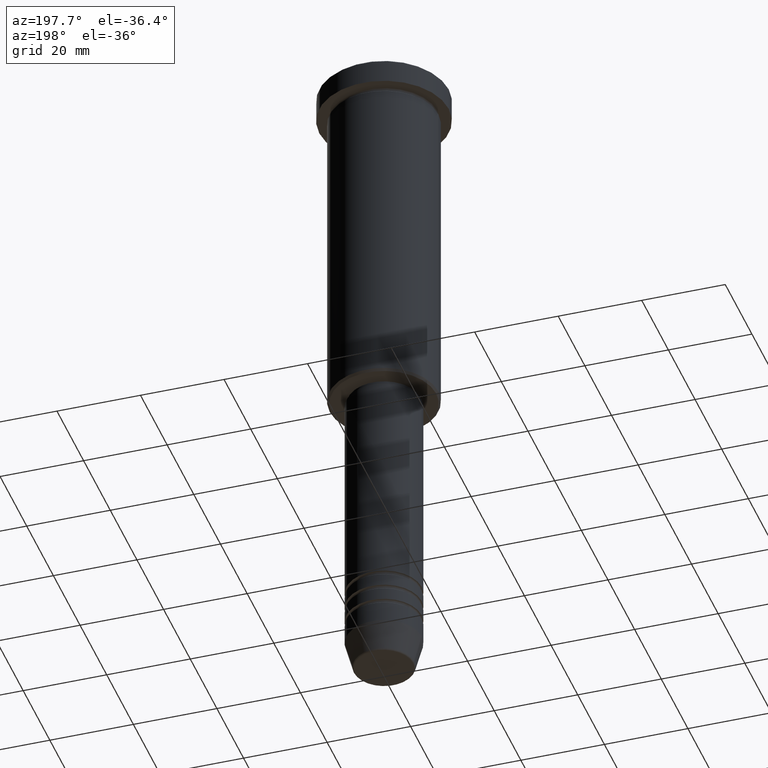
[diagram: clean part render]
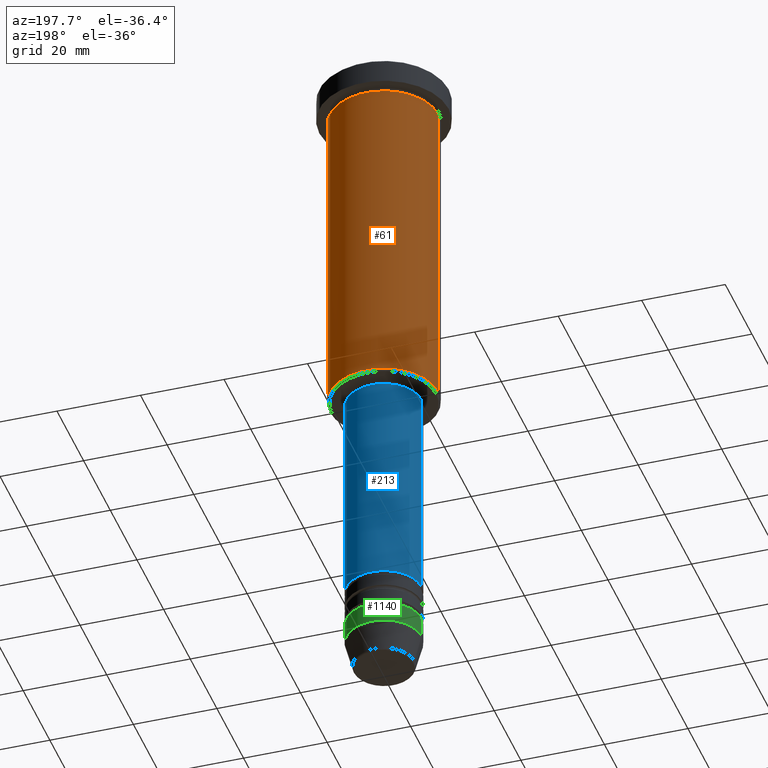
[diagram: same view with three faces highlighted in distinct colors, each labeled with its STEP entity id]
A machine part, auxiliary view with three faces highlighted in distinct colors.
Their STEP definitions:

[orange] entity #61 — the highlighted cylindrical surface (partial cylindrical patch) has radius 13 mm, axis along (-0, -0, 1).
#1 = VERTEX_POINT ( 'NONE', #56 ) ;
#56 = CARTESIAN_POINT ( 'NONE',  ( -13.00000000000000178, 1.592040838891559293E-15, -6.999999999999995559 ) ) ;
#61 = ADVANCED_FACE ( 'NONE', ( #1095 ), #344, .T. ) ;
#63 = ORIENTED_EDGE ( 'NONE', *, *, #975, .F. ) ;
#66 = DIRECTION ( 'NONE',  ( 1.000000000000000000, 0.000000000000000000, 0.000000000000000000 ) ) ;
#81 = LINE ( 'NONE', #617, #334 ) ;
#204 = CARTESIAN_POINT ( 'NONE',  ( 13.00000000000000178, 0.000000000000000000, -6.999999999999995559 ) ) ;
#259 = VERTEX_POINT ( 'NONE', #204 ) ;
#266 = CARTESIAN_POINT ( 'NONE',  ( 0.000000000000000000, 0.000000000000000000, -85.49999999999992895 ) ) ;
#267 = ORIENTED_EDGE ( 'NONE', *, *, #772, .T. ) ;
#294 = CARTESIAN_POINT ( 'NONE',  ( -13.00000000000000178, 1.592040838891559293E-15, 0.000000000000000000 ) ) ;
#334 = VECTOR ( 'NONE', #701, 1000.000000000000000 ) ;
#344 = CYLINDRICAL_SURFACE ( 'NONE', #842, 13.00000000000000178 ) ;
#374 = CIRCLE ( 'NONE', #609, 13.00000000000000178 ) ;
#406 = ORIENTED_EDGE ( 'NONE', *, *, #1159, .T. ) ;
#448 = VERTEX_POINT ( 'NONE', #1064 ) ;
#476 = DIRECTION ( 'NONE',  ( -0.000000000000000000, -0.000000000000000000, 1.000000000000000000 ) ) ;
#531 = CARTESIAN_POINT ( 'NONE',  ( -13.00000000000000178, 1.592040838891559293E-15, -85.49999999999992895 ) ) ;
#552 = CIRCLE ( 'NONE', #724, 13.00000000000000178 ) ;
#576 = VERTEX_POINT ( 'NONE', #531 ) ;
#585 = EDGE_CURVE ( 'NONE', #259, #1, #552, .T. ) ;
#609 = AXIS2_PLACEMENT_3D ( 'NONE', #266, #646, #1023 ) ;
#617 = CARTESIAN_POINT ( 'NONE',  ( 13.00000000000000178, 0.000000000000000000, 0.000000000000000000 ) ) ;
#646 = DIRECTION ( 'NONE',  ( -0.000000000000000000, -0.000000000000000000, 1.000000000000000000 ) ) ;
#701 = DIRECTION ( 'NONE',  ( -0.000000000000000000, -0.000000000000000000, 1.000000000000000000 ) ) ;
#724 = AXIS2_PLACEMENT_3D ( 'NONE', #1164, #1079, #818 ) ;
#735 = ORIENTED_EDGE ( 'NONE', *, *, #585, .F. ) ;
#772 = EDGE_CURVE ( 'NONE', #576, #1, #1119, .T. ) ;
#816 = EDGE_LOOP ( 'NONE', ( #406, #267, #735, #63 ) ) ;
#818 = DIRECTION ( 'NONE',  ( 1.000000000000000000, 0.000000000000000000, 0.000000000000000000 ) ) ;
#842 = AXIS2_PLACEMENT_3D ( 'NONE', #1076, #1169, #66 ) ;
#970 = VECTOR ( 'NONE', #476, 1000.000000000000000 ) ;
#975 = EDGE_CURVE ( 'NONE', #448, #259, #81, .T. ) ;
#1023 = DIRECTION ( 'NONE',  ( -1.000000000000000000, 0.000000000000000000, 0.000000000000000000 ) ) ;
#1064 = CARTESIAN_POINT ( 'NONE',  ( 13.00000000000000178, 0.000000000000000000, -85.49999999999992895 ) ) ;
#1076 = CARTESIAN_POINT ( 'NONE',  ( 0.000000000000000000, 0.000000000000000000, 0.000000000000000000 ) ) ;
#1079 = DIRECTION ( 'NONE',  ( -0.000000000000000000, -0.000000000000000000, 1.000000000000000000 ) ) ;
#1095 = FACE_OUTER_BOUND ( 'NONE', #816, .T. ) ;
#1119 = LINE ( 'NONE', #294, #970 ) ;
#1159 = EDGE_CURVE ( 'NONE', #448, #576, #374, .T. ) ;
#1164 = CARTESIAN_POINT ( 'NONE',  ( 0.000000000000000000, 0.000000000000000000, -6.999999999999995559 ) ) ;
#1169 = DIRECTION ( 'NONE',  ( -0.000000000000000000, -0.000000000000000000, 1.000000000000000000 ) ) ;

[blue] entity #213 — the highlighted cylindrical surface (partial cylindrical patch) has radius 9 mm, axis along (-0, -0, 1).
#52 = VECTOR ( 'NONE', #198, 1000.000000000000000 ) ;
#54 = DIRECTION ( 'NONE',  ( 1.000000000000000000, 0.000000000000000000, 0.000000000000000000 ) ) ;
#58 = VERTEX_POINT ( 'NONE', #910 ) ;
#90 = VECTOR ( 'NONE', #628, 1000.000000000000000 ) ;
#105 = CIRCLE ( 'NONE', #702, 8.999999999999998224 ) ;
#198 = DIRECTION ( 'NONE',  ( -0.000000000000000000, -0.000000000000000000, 1.000000000000000000 ) ) ;
#210 = ORIENTED_EDGE ( 'NONE', *, *, #1179, .F. ) ;
#213 = ADVANCED_FACE ( 'NONE', ( #1030 ), #836, .T. ) ;
#238 = CARTESIAN_POINT ( 'NONE',  ( -8.999999999999998224, 1.102182119232617714E-15, -86.99999999999997158 ) ) ;
#249 = LINE ( 'NONE', #902, #90 ) ;
#252 = CARTESIAN_POINT ( 'NONE',  ( 0.000000000000000000, 0.000000000000000000, -86.99999999999997158 ) ) ;
#302 = DIRECTION ( 'NONE',  ( -0.000000000000000000, -0.000000000000000000, 1.000000000000000000 ) ) ;
#320 = DIRECTION ( 'NONE',  ( -0.000000000000000000, -0.000000000000000000, 1.000000000000000000 ) ) ;
#338 = DIRECTION ( 'NONE',  ( -0.000000000000000000, -0.000000000000000000, 1.000000000000000000 ) ) ;
#369 = DIRECTION ( 'NONE',  ( 1.000000000000000000, 0.000000000000000000, 0.000000000000000000 ) ) ;
#411 = VERTEX_POINT ( 'NONE', #506 ) ;
#425 = ORIENTED_EDGE ( 'NONE', *, *, #866, .T. ) ;
#483 = CARTESIAN_POINT ( 'NONE',  ( 8.999999999999998224, 0.000000000000000000, -86.99999999999997158 ) ) ;
#504 = CARTESIAN_POINT ( 'NONE',  ( 0.000000000000000000, 0.000000000000000000, -139.9999999999998579 ) ) ;
#506 = CARTESIAN_POINT ( 'NONE',  ( -9.000000000000001776, 1.102182119232617911E-15, -139.9999999999998579 ) ) ;
#520 = ORIENTED_EDGE ( 'NONE', *, *, #594, .F. ) ;
#594 = EDGE_CURVE ( 'NONE', #723, #997, #105, .T. ) ;
#626 = CIRCLE ( 'NONE', #1086, 9.000000000000001776 ) ;
#628 = DIRECTION ( 'NONE',  ( -0.000000000000000000, -0.000000000000000000, 1.000000000000000000 ) ) ;
#702 = AXIS2_PLACEMENT_3D ( 'NONE', #252, #338, #1176 ) ;
#723 = VERTEX_POINT ( 'NONE', #483 ) ;
#731 = EDGE_LOOP ( 'NONE', ( #425, #1182, #520, #210 ) ) ;
#836 = CYLINDRICAL_SURFACE ( 'NONE', #855, 9.000000000000000000 ) ;
#846 = LINE ( 'NONE', #919, #52 ) ;
#855 = AXIS2_PLACEMENT_3D ( 'NONE', #1035, #302, #369 ) ;
#866 = EDGE_CURVE ( 'NONE', #58, #411, #626, .T. ) ;
#902 = CARTESIAN_POINT ( 'NONE',  ( -9.000000000000000000, 1.102182119232617714E-15, 0.000000000000000000 ) ) ;
#910 = CARTESIAN_POINT ( 'NONE',  ( 9.000000000000001776, 0.000000000000000000, -139.9999999999998579 ) ) ;
#919 = CARTESIAN_POINT ( 'NONE',  ( 9.000000000000000000, 0.000000000000000000, 0.000000000000000000 ) ) ;
#997 = VERTEX_POINT ( 'NONE', #238 ) ;
#1030 = FACE_OUTER_BOUND ( 'NONE', #731, .T. ) ;
#1035 = CARTESIAN_POINT ( 'NONE',  ( 0.000000000000000000, 0.000000000000000000, 0.000000000000000000 ) ) ;
#1063 = EDGE_CURVE ( 'NONE', #411, #997, #249, .T. ) ;
#1086 = AXIS2_PLACEMENT_3D ( 'NONE', #504, #320, #54 ) ;
#1176 = DIRECTION ( 'NONE',  ( 1.000000000000000000, 0.000000000000000000, 0.000000000000000000 ) ) ;
#1179 = EDGE_CURVE ( 'NONE', #58, #723, #846, .T. ) ;
#1182 = ORIENTED_EDGE ( 'NONE', *, *, #1063, .T. ) ;

[green] entity #1140 — the highlighted cylindrical surface (partial cylindrical patch) has radius 9 mm, axis along (-0, -0, 1).
#132 = DIRECTION ( 'NONE',  ( -0.000000000000000000, -0.000000000000000000, 1.000000000000000000 ) ) ;
#147 = ORIENTED_EDGE ( 'NONE', *, *, #1072, .T. ) ;
#164 = AXIS2_PLACEMENT_3D ( 'NONE', #925, #912, #272 ) ;
#170 = LINE ( 'NONE', #730, #454 ) ;
#177 = VERTEX_POINT ( 'NONE', #737 ) ;
#237 = CIRCLE ( 'NONE', #898, 9.000000000000000000 ) ;
#272 = DIRECTION ( 'NONE',  ( 1.000000000000000000, 0.000000000000000000, 0.000000000000000000 ) ) ;
#361 = ORIENTED_EDGE ( 'NONE', *, *, #1040, .T. ) ;
#424 = DIRECTION ( 'NONE',  ( 1.000000000000000000, 0.000000000000000000, 0.000000000000000000 ) ) ;
#454 = VECTOR ( 'NONE', #908, 1000.000000000000000 ) ;
#458 = CARTESIAN_POINT ( 'NONE',  ( 0.000000000000000000, 0.000000000000000000, -148.9999999999999716 ) ) ;
#463 = DIRECTION ( 'NONE',  ( 1.000000000000000000, 0.000000000000000000, 0.000000000000000000 ) ) ;
#511 = VECTOR ( 'NONE', #132, 1000.000000000000000 ) ;
#527 = CARTESIAN_POINT ( 'NONE',  ( 0.000000000000000000, 0.000000000000000000, -153.9999999999999716 ) ) ;
#541 = VERTEX_POINT ( 'NONE', #1003 ) ;
#657 = CARTESIAN_POINT ( 'NONE',  ( 9.000000000000000000, 0.000000000000000000, -148.9999999999999716 ) ) ;
#692 = CARTESIAN_POINT ( 'NONE',  ( 9.000000000000000000, 0.000000000000000000, 0.000000000000000000 ) ) ;
#716 = VERTEX_POINT ( 'NONE', #657 ) ;
#730 = CARTESIAN_POINT ( 'NONE',  ( -9.000000000000000000, 1.102182119232617714E-15, 0.000000000000000000 ) ) ;
#737 = CARTESIAN_POINT ( 'NONE',  ( -9.000000000000000000, 1.102182119232617714E-15, -148.9999999999999716 ) ) ;
#746 = VERTEX_POINT ( 'NONE', #834 ) ;
#756 = CYLINDRICAL_SURFACE ( 'NONE', #164, 9.000000000000000000 ) ;
#771 = LINE ( 'NONE', #692, #511 ) ;
#776 = EDGE_LOOP ( 'NONE', ( #361, #147, #1036, #793 ) ) ;
#793 = ORIENTED_EDGE ( 'NONE', *, *, #888, .F. ) ;
#797 = DIRECTION ( 'NONE',  ( -0.000000000000000000, -0.000000000000000000, 1.000000000000000000 ) ) ;
#822 = FACE_OUTER_BOUND ( 'NONE', #776, .T. ) ;
#834 = CARTESIAN_POINT ( 'NONE',  ( -9.000000000000000000, 1.102182119232617714E-15, -153.9999999999999716 ) ) ;
#877 = AXIS2_PLACEMENT_3D ( 'NONE', #527, #797, #424 ) ;
#888 = EDGE_CURVE ( 'NONE', #541, #716, #771, .T. ) ;
#898 = AXIS2_PLACEMENT_3D ( 'NONE', #458, #929, #463 ) ;
#908 = DIRECTION ( 'NONE',  ( -0.000000000000000000, -0.000000000000000000, 1.000000000000000000 ) ) ;
#912 = DIRECTION ( 'NONE',  ( -0.000000000000000000, -0.000000000000000000, 1.000000000000000000 ) ) ;
#925 = CARTESIAN_POINT ( 'NONE',  ( 0.000000000000000000, 0.000000000000000000, 0.000000000000000000 ) ) ;
#929 = DIRECTION ( 'NONE',  ( -0.000000000000000000, -0.000000000000000000, 1.000000000000000000 ) ) ;
#951 = CIRCLE ( 'NONE', #877, 9.000000000000000000 ) ;
#1003 = CARTESIAN_POINT ( 'NONE',  ( 9.000000000000000000, 0.000000000000000000, -153.9999999999999716 ) ) ;
#1036 = ORIENTED_EDGE ( 'NONE', *, *, #1111, .F. ) ;
#1040 = EDGE_CURVE ( 'NONE', #541, #746, #951, .T. ) ;
#1072 = EDGE_CURVE ( 'NONE', #746, #177, #170, .T. ) ;
#1111 = EDGE_CURVE ( 'NONE', #716, #177, #237, .T. ) ;
#1140 = ADVANCED_FACE ( 'NONE', ( #822 ), #756, .T. ) ;